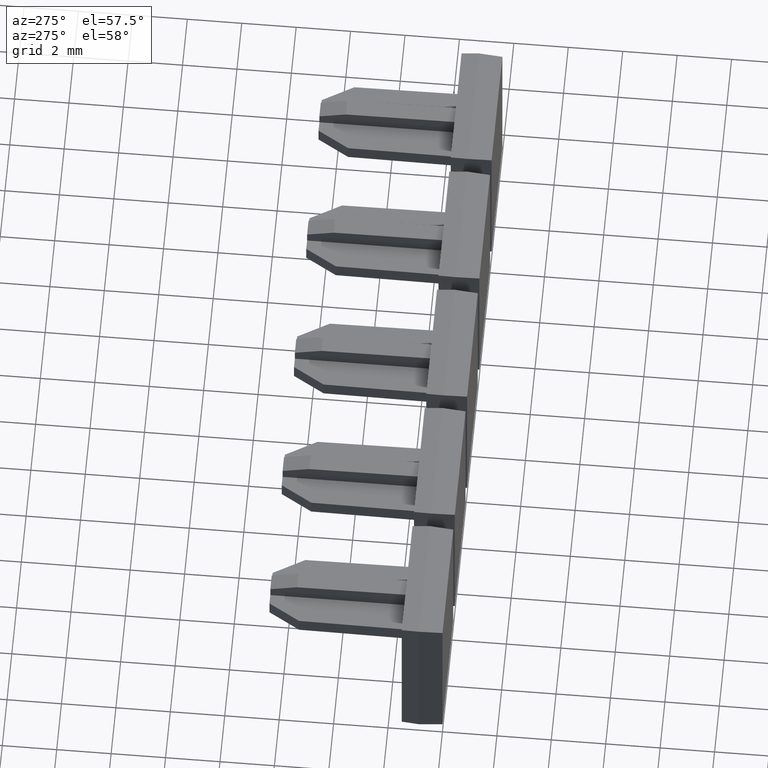
[diagram: clean part render]
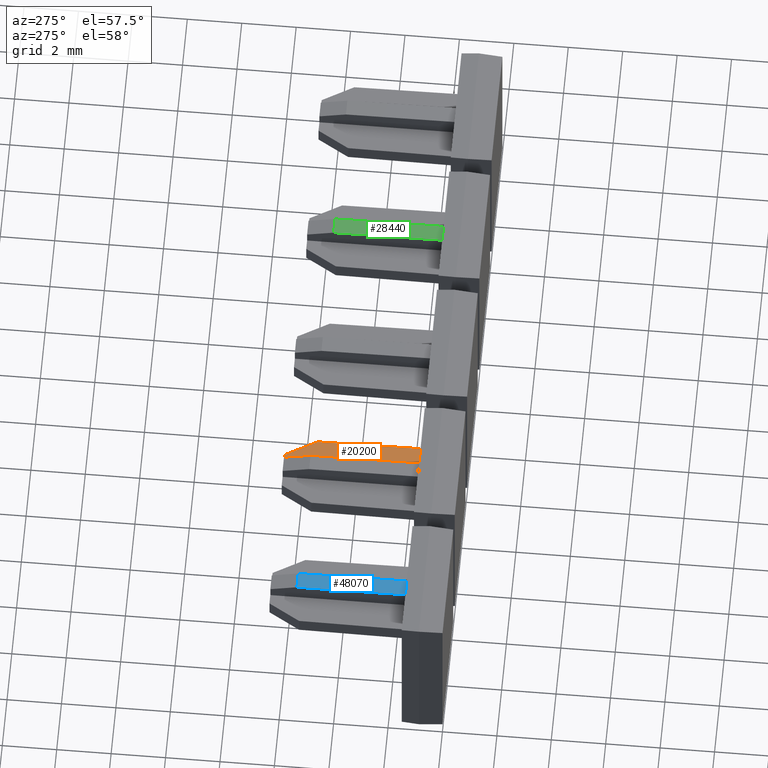
[diagram: same view with three faces highlighted in distinct colors, each labeled with its STEP entity id]
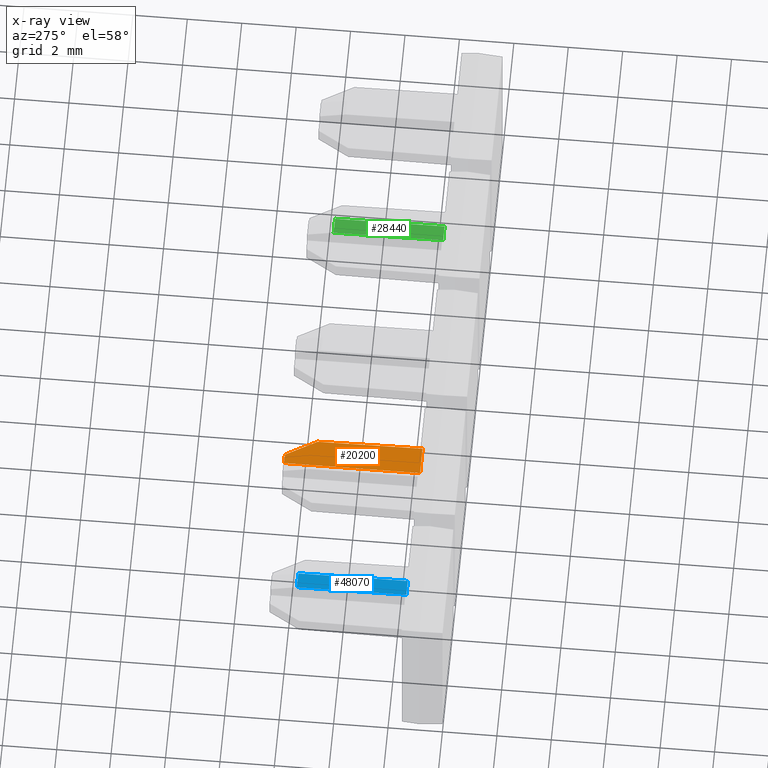
[diagram: x-ray of the same camera — body ghosted, the three highlighted faces saturated]
A machine part, auxiliary view with three faces highlighted in distinct colors.
The next image is the same camera in x-ray (body ghosted, the three faces saturated) — at least one of them is partly hidden behind the body in this view.
Their STEP definitions:

[orange] entity #20200 — the highlighted planar face has unit normal (0, 0, 1).
#7250=CARTESIAN_POINT('',(17.8177358666542,-2.73049214446796,
45.6449999999907));
#7260=VERTEX_POINT('',#7250);
#7290=CARTESIAN_POINT('',(17.8177358668056,-26.130492137742,
45.6449999999907));
#7300=DIRECTION('',(-6.4709014566237E-12,1.,1.22811114188243E-16));
#7310=VECTOR('',#7300,1.);
#7320=LINE('',#7290,#7310);
#7330=CARTESIAN_POINT('',(17.8177358666219,2.26950785552451,
45.6449999999907));
#7340=VERTEX_POINT('',#7330);
#7350=EDGE_CURVE('',#7260,#7340,#7320,.T.);
#15070=CARTESIAN_POINT('',(17.8177358666005,2.26950785552778,
53.6700000000654));
#15080=DIRECTION('',(-2.66975915508205E-12,4.08396006638927E-13,1.));
#15090=VECTOR('',#15080,1.);
#15100=LINE('',#15070,#15090);
#15110=CARTESIAN_POINT('',(17.8177358666247,2.26950785552407,
44.584999999962));
#15120=VERTEX_POINT('',#15110);
#15130=EDGE_CURVE('',#15120,#7340,#15100,.T.);
#19890=CARTESIAN_POINT('',(17.8177358666452,-1.23049214446795,
45.3849999999907));
#19900=DIRECTION('',(-1.,-6.4709014566237E-12,-2.66975915507941E-12));
#19910=DIRECTION('',(-6.4709014566237E-12,1.,1.22811114188142E-16));
#19920=AXIS2_PLACEMENT_3D('',#19890,#19900,#19910);
#19930=PLANE('',#19920);
#19940=ORIENTED_EDGE('',*,*,#15130,.F.);
#19950=ORIENTED_EDGE('',*,*,#7350,.T.);
#19960=CARTESIAN_POINT('',(17.8177358666328,-2.73049214446796,
53.6700000000674));
#19970=DIRECTION('',(-2.6697591550794E-12,-1.22811131463918E-16,1.));
#19980=VECTOR('',#19970,1.);
#19990=LINE('',#19960,#19980);
#20000=CARTESIAN_POINT('',(17.8177358666552,-2.73049214446796,
45.2795299461927));
#20010=VERTEX_POINT('',#20000);
#20020=EDGE_CURVE('',#20010,#7260,#19990,.T.);
#20030=ORIENTED_EDGE('',*,*,#20020,.T.);
#20040=CARTESIAN_POINT('',(17.8177358667706,-26.1304921377325,
58.7895262413412));
#20050=DIRECTION('',(-4.26905440598262E-12,0.866025403784439,
-0.499999999999999));
#20060=VECTOR('',#20050,1.);
#20070=LINE('',#20040,#20060);
#20080=CARTESIAN_POINT('',(17.8177358666496,-1.58580551061541,
44.6186448100002));
#20090=VERTEX_POINT('',#20080);
#20100=EDGE_CURVE('',#20010,#20090,#20070,.T.);
#20110=ORIENTED_EDGE('',*,*,#20100,.F.);
#20120=CARTESIAN_POINT('',(17.8177358668078,-26.1304921377424,
44.8328430451607));
#20130=DIRECTION('',(6.44735786050918E-12,-0.999961923064171,
0.00872653549837378));
#20140=VECTOR('',#20130,1.);
#20150=LINE('',#20120,#20140);
#20160=EDGE_CURVE('',#15120,#20090,#20150,.T.);
#20170=ORIENTED_EDGE('',*,*,#20160,.T.);
#20180=EDGE_LOOP('',(#20170,#20110,#20030,#19950,#19940));
#20190=FACE_OUTER_BOUND('',#20180,.T.);
#20200=ADVANCED_FACE('',(#20190),#19930,.T.);

[blue] entity #48070 — the highlighted planar face has unit normal (0, 0.0087, 1).
#47440=CARTESIAN_POINT('',(17.1528561736546,-1.75488071211446,
53.6700000000652));
#47450=DIRECTION('',(-2.66849592295643E-12,-4.8372575960309E-15,1.));
#47460=VECTOR('',#47450,1.);
#47470=LINE('',#47440,#47460);
#47480=CARTESIAN_POINT('',(17.1528561736623,-1.75488071211443,
50.794999999989));
#47490=VERTEX_POINT('',#47480);
#47500=CARTESIAN_POINT('',(17.1528561736607,-1.75488071211444,
51.394999999989));
#47510=VERTEX_POINT('',#47500);
#47520=EDGE_CURVE('',#47490,#47510,#47470,.T.);
#47770=CARTESIAN_POINT('',(17.1352960201643,0.257313571704039,
51.0949999999889));
#47780=DIRECTION('',(-0.999961923064115,-0.00872653550484443,
-2.66843652730842E-12));
#47790=DIRECTION('',(-0.00872653550484443,0.999961923064115,
-4.3167820422652E-13));
#47800=AXIS2_PLACEMENT_3D('',#47770,#47780,#47790);
#47810=PLANE('',#47800);
#47820=CARTESIAN_POINT('',(17.3655789120504,-26.1304921377399,
50.7949999999895));
#47830=DIRECTION('',(-0.00872653550484443,0.999961923064115,
-2.31742444009075E-14));
#47840=VECTOR('',#47830,1.);
#47850=LINE('',#47820,#47840);
#47860=CARTESIAN_POINT('',(17.1177358666679,2.2695078555224,
50.7949999999889));
#47870=VERTEX_POINT('',#47860);
#47880=EDGE_CURVE('',#47490,#47870,#47850,.T.);
#47890=ORIENTED_EDGE('',*,*,#47880,.F.);
#47900=CARTESIAN_POINT('',(17.1177358666602,2.26950785552357,
53.6700000000635));
#47910=DIRECTION('',(-2.67210215502283E-12,4.08396006638927E-13,1.));
#47920=VECTOR('',#47910,1.);
#47930=LINE('',#47900,#47920);
#47940=CARTESIAN_POINT('',(17.1177358666663,2.26950785552264,
51.3949999999889));
#47950=VERTEX_POINT('',#47940);
#47960=EDGE_CURVE('',#47870,#47950,#47930,.T.);
#47970=ORIENTED_EDGE('',*,*,#47960,.F.);
#47980=CARTESIAN_POINT('',(17.3655789120488,-26.1304921377397,
51.3949999999895));
#47990=DIRECTION('',(0.00872653550484443,-0.999961923064115,
2.31742444009075E-14));
#48000=VECTOR('',#47990,1.);
#48010=LINE('',#47980,#48000);
#48020=EDGE_CURVE('',#47950,#47510,#48010,.T.);
#48030=ORIENTED_EDGE('',*,*,#48020,.F.);
#48040=ORIENTED_EDGE('',*,*,#47520,.T.);
#48050=EDGE_LOOP('',(#48040,#48030,#47970,#47890));
#48060=FACE_OUTER_BOUND('',#48050,.T.);
#48070=ADVANCED_FACE('',(#48060),#47810,.T.);

[green] entity #28440 — the highlighted planar face has unit normal (0, 0.0087, 1).
#13640=CARTESIAN_POINT('',(17.1528561736593,-1.75488071210816,
35.944999999989));
#13650=VERTEX_POINT('',#13640);
#13700=CARTESIAN_POINT('',(17.3655789120475,-26.130492137746,
35.9449999999895));
#13710=DIRECTION('',(0.00872653550484443,-0.999961923064115,
2.31742444009075E-14));
#13720=VECTOR('',#13710,1.);
#13730=LINE('',#13700,#13720);
#13740=CARTESIAN_POINT('',(17.1177358666648,2.26950785552895,
35.9449999999889));
#13750=VERTEX_POINT('',#13740);
#13760=EDGE_CURVE('',#13750,#13650,#13730,.T.);
#25380=CARTESIAN_POINT('',(17.1528561736609,-1.75488071210813,
35.344999999989));
#25390=VERTEX_POINT('',#25380);
#25620=CARTESIAN_POINT('',(17.1177358666664,2.2695078555287,
35.3449999999889));
#25630=VERTEX_POINT('',#25620);
#25660=CARTESIAN_POINT('',(17.3655789120491,-26.1304921377462,
35.3449999999895));
#25670=DIRECTION('',(-0.00872653550484443,0.999961923064115,
-2.31742444009075E-14));
#25680=VECTOR('',#25670,1.);
#25690=LINE('',#25660,#25680);
#25700=EDGE_CURVE('',#25390,#25630,#25690,.T.);
#28230=CARTESIAN_POINT('',(17.1352960201629,0.257313571710348,
35.6449999999889));
#28240=DIRECTION('',(-0.999961923064115,-0.00872653550484443,
-2.66108617059099E-12));
#28250=DIRECTION('',(-0.00872653550484443,0.999961923064115,
-4.3167820422652E-13));
#28260=AXIS2_PLACEMENT_3D('',#28230,#28240,#28250);
#28270=PLANE('',#28260);
#28280=CARTESIAN_POINT('',(17.1528561736121,-1.75488071210875,
53.6700000000652));
#28290=DIRECTION('',(-2.66089782296439E-12,-3.31937528065963E-14,1.));
#28300=VECTOR('',#28290,1.);
#28310=LINE('',#28280,#28300);
#28320=EDGE_CURVE('',#25390,#13650,#28310,.T.);
#28330=ORIENTED_EDGE('',*,*,#28320,.T.);
#28340=ORIENTED_EDGE('',*,*,#25700,.F.);
#28350=CARTESIAN_POINT('',(17.1177358666176,2.26950785553619,
53.6700000000635));
#28360=DIRECTION('',(-2.66475151841568E-12,4.08396006638926E-13,1.));
#28370=VECTOR('',#28360,1.);
#28380=LINE('',#28350,#28370);
#28390=EDGE_CURVE('',#25630,#13750,#28380,.T.);
#28400=ORIENTED_EDGE('',*,*,#28390,.F.);
#28410=ORIENTED_EDGE('',*,*,#13760,.F.);
#28420=EDGE_LOOP('',(#28410,#28400,#28340,#28330));
#28430=FACE_OUTER_BOUND('',#28420,.T.);
#28440=ADVANCED_FACE('',(#28430),#28270,.T.);